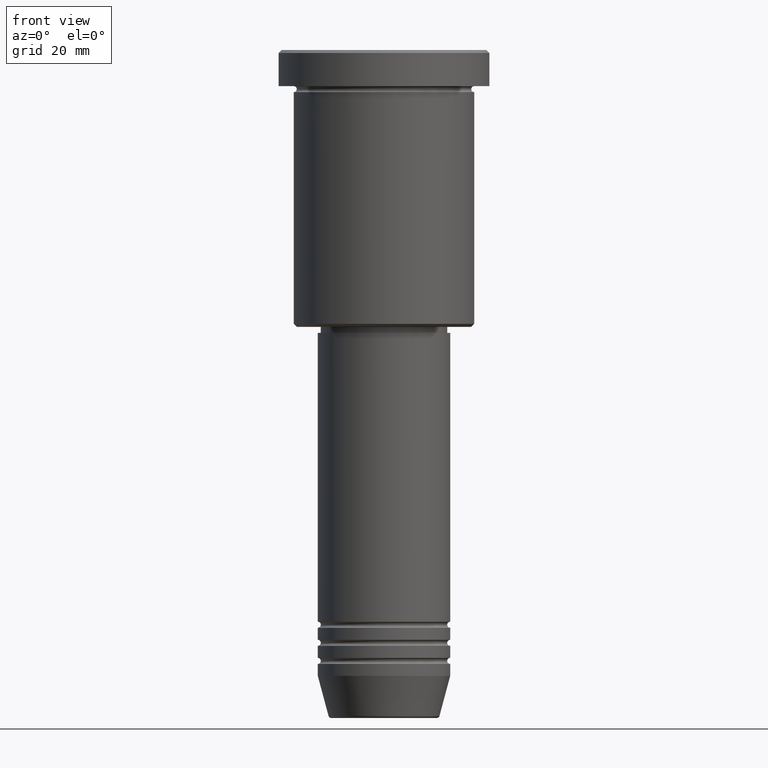
[diagram: clean part render]
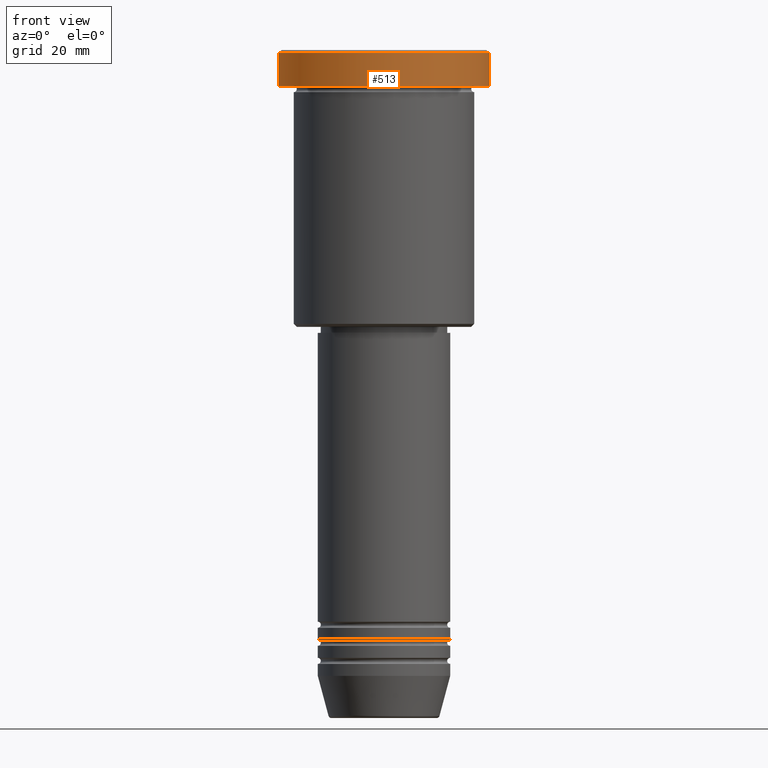
[diagram: same view with one face highlighted and labeled with its STEP entity id]
A machine part, front view. The second image highlights one B-rep face of the part: STEP entity #513.
In plain terms, the highlighted cylindrical surface (partial cylindrical patch) has radius 17.5 mm, axis along (-0, -0, 1).
Its self-contained STEP definition (entity closure, byte-faithful):
#5 = LINE ( 'NONE', #838, #830 ) ;
#21 = DIRECTION ( 'NONE',  ( -0.000000000000000000, -0.000000000000000000, 1.000000000000000000 ) ) ;
#24 = CARTESIAN_POINT ( 'NONE',  ( -17.50000000000000000, 2.143131898507868248E-15, -0.5000000000000281997 ) ) ;
#41 = CYLINDRICAL_SURFACE ( 'NONE', #706, 17.50000000000000000 ) ;
#59 = DIRECTION ( 'NONE',  ( 1.000000000000000000, 0.000000000000000000, 0.000000000000000000 ) ) ;
#62 = CARTESIAN_POINT ( 'NONE',  ( 0.000000000000000000, 0.000000000000000000, 0.000000000000000000 ) ) ;
#75 = VERTEX_POINT ( 'NONE', #237 ) ;
#93 = VERTEX_POINT ( 'NONE', #941 ) ;
#99 = ORIENTED_EDGE ( 'NONE', *, *, #240, .T. ) ;
#103 = CIRCLE ( 'NONE', #320, 17.50000000000000000 ) ;
#125 = AXIS2_PLACEMENT_3D ( 'NONE', #246, #261, #897 ) ;
#191 = VERTEX_POINT ( 'NONE', #24 ) ;
#207 = EDGE_CURVE ( 'NONE', #850, #75, #1026, .T. ) ;
#217 = EDGE_CURVE ( 'NONE', #93, #191, #5, .T. ) ;
#222 = DIRECTION ( 'NONE',  ( 1.000000000000000000, 0.000000000000000000, 0.000000000000000000 ) ) ;
#237 = CARTESIAN_POINT ( 'NONE',  ( 17.50000000000000000, 0.000000000000000000, -0.5000000000000281997 ) ) ;
#240 = EDGE_CURVE ( 'NONE', #75, #191, #103, .T. ) ;
#246 = CARTESIAN_POINT ( 'NONE',  ( 0.000000000000000000, 0.000000000000000000, -5.999999999999995559 ) ) ;
#247 = CIRCLE ( 'NONE', #125, 17.50000000000000000 ) ;
#261 = DIRECTION ( 'NONE',  ( -0.000000000000000000, -0.000000000000000000, 1.000000000000000000 ) ) ;
#315 = CARTESIAN_POINT ( 'NONE',  ( 0.000000000000000000, 0.000000000000000000, -0.5000000000000281997 ) ) ;
#320 = AXIS2_PLACEMENT_3D ( 'NONE', #315, #684, #222 ) ;
#477 = EDGE_CURVE ( 'NONE', #93, #850, #247, .T. ) ;
#513 = ADVANCED_FACE ( 'NONE', ( #860 ), #41, .T. ) ;
#568 = ORIENTED_EDGE ( 'NONE', *, *, #207, .T. ) ;
#684 = DIRECTION ( 'NONE',  ( 0.000000000000000000, 0.000000000000000000, -1.000000000000000000 ) ) ;
#689 = EDGE_LOOP ( 'NONE', ( #764, #1135, #568, #99 ) ) ;
#706 = AXIS2_PLACEMENT_3D ( 'NONE', #62, #878, #59 ) ;
#728 = VECTOR ( 'NONE', #823, 1000.000000000000000 ) ;
#764 = ORIENTED_EDGE ( 'NONE', *, *, #217, .F. ) ;
#823 = DIRECTION ( 'NONE',  ( -0.000000000000000000, -0.000000000000000000, 1.000000000000000000 ) ) ;
#830 = VECTOR ( 'NONE', #21, 1000.000000000000000 ) ;
#838 = CARTESIAN_POINT ( 'NONE',  ( -17.50000000000000000, 2.143131898507868248E-15, 0.000000000000000000 ) ) ;
#850 = VERTEX_POINT ( 'NONE', #858 ) ;
#858 = CARTESIAN_POINT ( 'NONE',  ( 17.50000000000000000, 0.000000000000000000, -5.999999999999995559 ) ) ;
#860 = FACE_OUTER_BOUND ( 'NONE', #689, .T. ) ;
#878 = DIRECTION ( 'NONE',  ( -0.000000000000000000, -0.000000000000000000, 1.000000000000000000 ) ) ;
#897 = DIRECTION ( 'NONE',  ( 1.000000000000000000, 0.000000000000000000, 0.000000000000000000 ) ) ;
#941 = CARTESIAN_POINT ( 'NONE',  ( -17.50000000000000000, 2.143131898507868248E-15, -5.999999999999995559 ) ) ;
#1026 = LINE ( 'NONE', #1040, #728 ) ;
#1040 = CARTESIAN_POINT ( 'NONE',  ( 17.50000000000000000, 0.000000000000000000, 0.000000000000000000 ) ) ;
#1135 = ORIENTED_EDGE ( 'NONE', *, *, #477, .T. ) ;